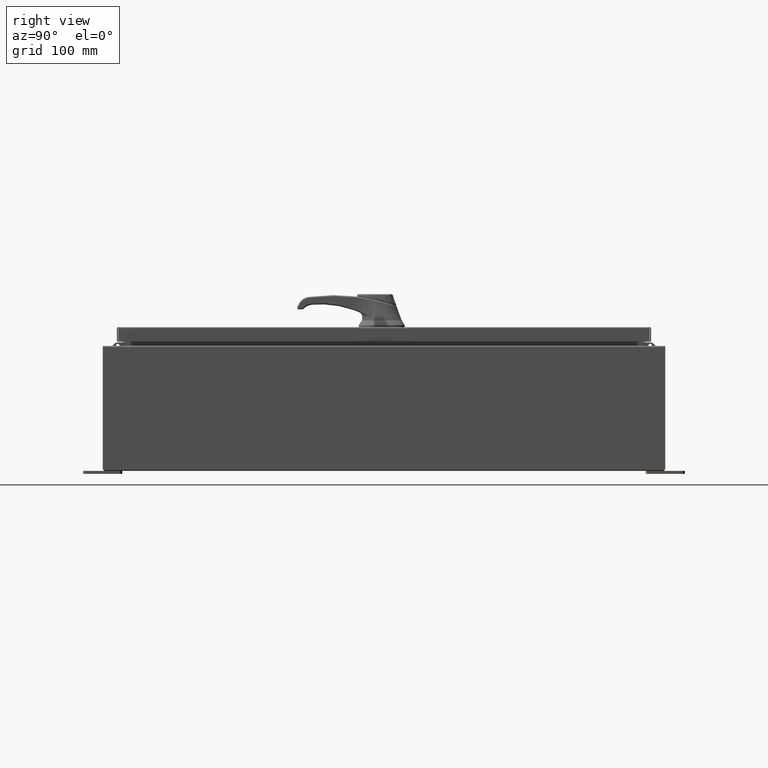
[diagram: clean part render]
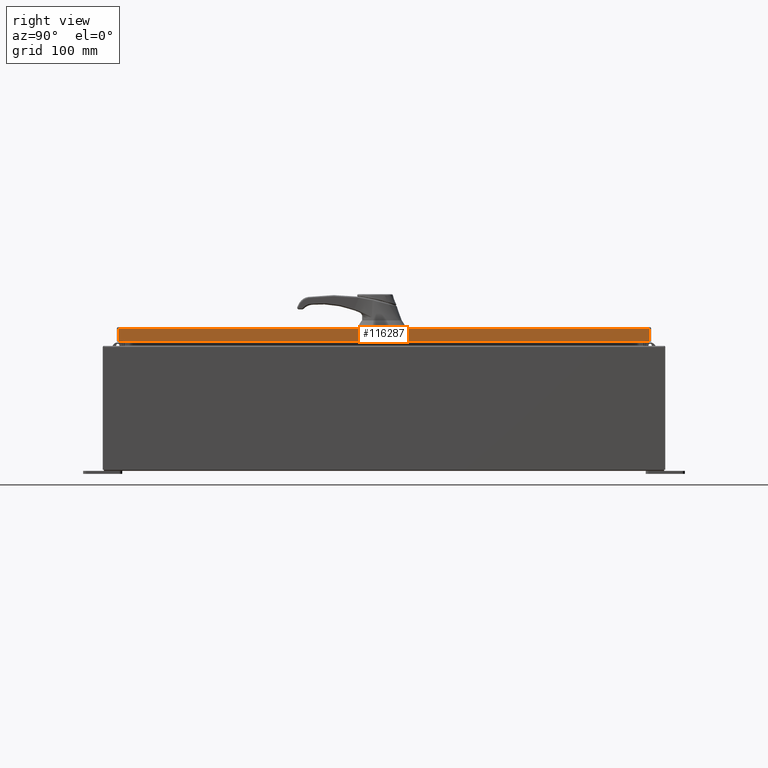
[diagram: same view with one face highlighted and labeled with its STEP entity id]
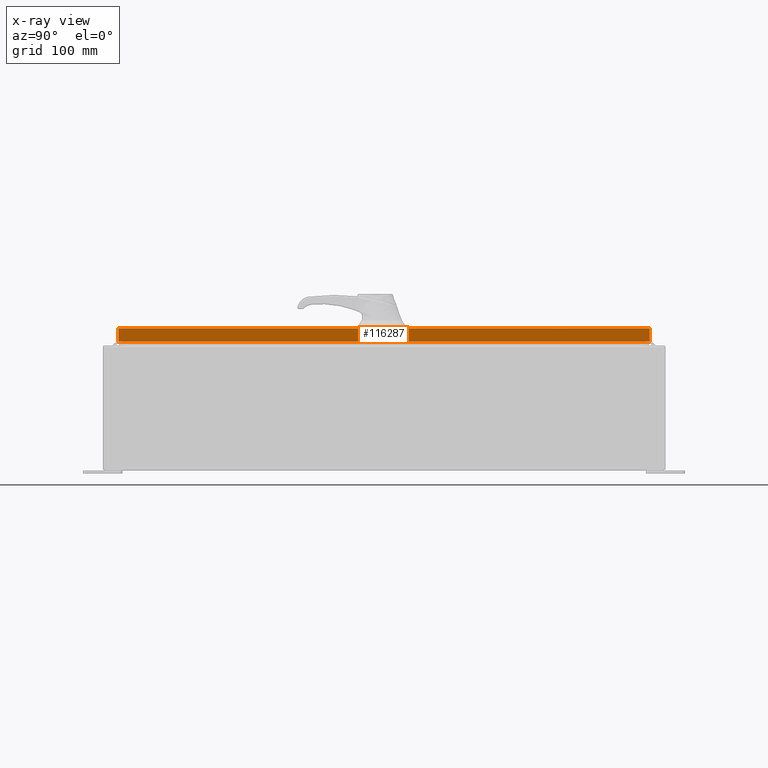
[diagram: x-ray of the same camera — body ghosted, the highlighted face saturated]
A machine part, right view. The second image highlights one B-rep face of the part: STEP entity #116287.
The next image is the same camera in x-ray: the body ghosted, the highlighted face saturated — about 0% of this face is hidden behind the body in this view.
In plain terms, the highlighted planar face has unit normal (1, 0, 0).
Its self-contained STEP definition (entity closure, byte-faithful):
#3721 = LINE ( 'NONE', #73194, #51193 ) ;
#7594 = LINE ( 'NONE', #60735, #55064 ) ;
#22532 = CARTESIAN_POINT ( 'NONE',  ( 11.07799999999999800, 17.00515786437628000, -0.9376999999999997600 ) ) ;
#25313 = CARTESIAN_POINT ( 'NONE',  ( 11.07799999999999600, 17.00515786437627600, 1.470613442758536900E-013 ) ) ;
#27412 = DIRECTION ( 'NONE',  ( 1.000000000000000000, 0.0000000000000000000, 2.532419924601866100E-015 ) ) ;
#29797 = AXIS2_PLACEMENT_3D ( 'NONE', #46024, #27412, #93859 ) ;
#31963 = FACE_OUTER_BOUND ( 'NONE', #43236, .T. ) ;
#38141 = CARTESIAN_POINT ( 'NONE',  ( 11.07799999999999600, -17.00515786437626500, -0.08770000000000008300 ) ) ;
#43236 = EDGE_LOOP ( 'NONE', ( #121029, #72929, #113395, #111775 ) ) ;
#43406 = VECTOR ( 'NONE', #82102, 39.37007874015748100 ) ;
#46024 = CARTESIAN_POINT ( 'NONE',  ( 11.07799999999999600, 0.0000000000000000000, 2.831496158075104400E-014 ) ) ;
#47257 = CARTESIAN_POINT ( 'NONE',  ( 11.07799999999999800, -17.09399999999999800, -0.9376999999999997600 ) ) ;
#47468 = EDGE_CURVE ( 'NONE', #66743, #85919, #3721, .T. ) ;
#51193 = VECTOR ( 'NONE', #82336, 39.37007874015748100 ) ;
#54553 = EDGE_CURVE ( 'NONE', #76471, #85919, #7594, .T. ) ;
#55064 = VECTOR ( 'NONE', #70256, 39.37007874015748100 ) ;
#60735 = CARTESIAN_POINT ( 'NONE',  ( 11.07799999999999600, 0.0000000000000000000, -0.08770000000000008300 ) ) ;
#65073 = PLANE ( 'NONE',  #29797 ) ;
#66743 = VERTEX_POINT ( 'NONE', #97914 ) ;
#68591 = LINE ( 'NONE', #25313, #43406 ) ;
#70256 = DIRECTION ( 'NONE',  ( 0.0000000000000000000, -1.000000000000000000, 0.0000000000000000000 ) ) ;
#72929 = ORIENTED_EDGE ( 'NONE', *, *, #75230, .F. ) ;
#73194 = CARTESIAN_POINT ( 'NONE',  ( 11.07799999999999600, -17.00515786437626500, -0.07469999999999980800 ) ) ;
#74454 = CARTESIAN_POINT ( 'NONE',  ( 11.07799999999999600, 17.00515786437627600, -0.08770000000000008300 ) ) ;
#75230 = EDGE_CURVE ( 'NONE', #103177, #66743, #83573, .T. ) ;
#76471 = VERTEX_POINT ( 'NONE', #74454 ) ;
#82102 = DIRECTION ( 'NONE',  ( -2.532419924601866100E-015, -6.982962677686265900E-015, 1.000000000000000000 ) ) ;
#82336 = DIRECTION ( 'NONE',  ( -2.532419924601866100E-015, -6.982962677686265900E-015, 1.000000000000000000 ) ) ;
#83573 = LINE ( 'NONE', #47257, #115086 ) ;
#85919 = VERTEX_POINT ( 'NONE', #38141 ) ;
#93859 = DIRECTION ( 'NONE',  ( 2.532419924601866100E-015, 0.0000000000000000000, -1.000000000000000000 ) ) ;
#97914 = CARTESIAN_POINT ( 'NONE',  ( 11.07799999999999800, -17.00515786437625800, -0.9376999999999997600 ) ) ;
#103177 = VERTEX_POINT ( 'NONE', #22532 ) ;
#106680 = EDGE_CURVE ( 'NONE', #103177, #76471, #68591, .T. ) ;
#111775 = ORIENTED_EDGE ( 'NONE', *, *, #54553, .T. ) ;
#113395 = ORIENTED_EDGE ( 'NONE', *, *, #106680, .T. ) ;
#113962 = DIRECTION ( 'NONE',  ( 0.0000000000000000000, -1.000000000000000000, 0.0000000000000000000 ) ) ;
#115086 = VECTOR ( 'NONE', #113962, 39.37007874015748100 ) ;
#116287 = ADVANCED_FACE ( 'NONE', ( #31963 ), #65073, .T. ) ;
#121029 = ORIENTED_EDGE ( 'NONE', *, *, #47468, .F. ) ;